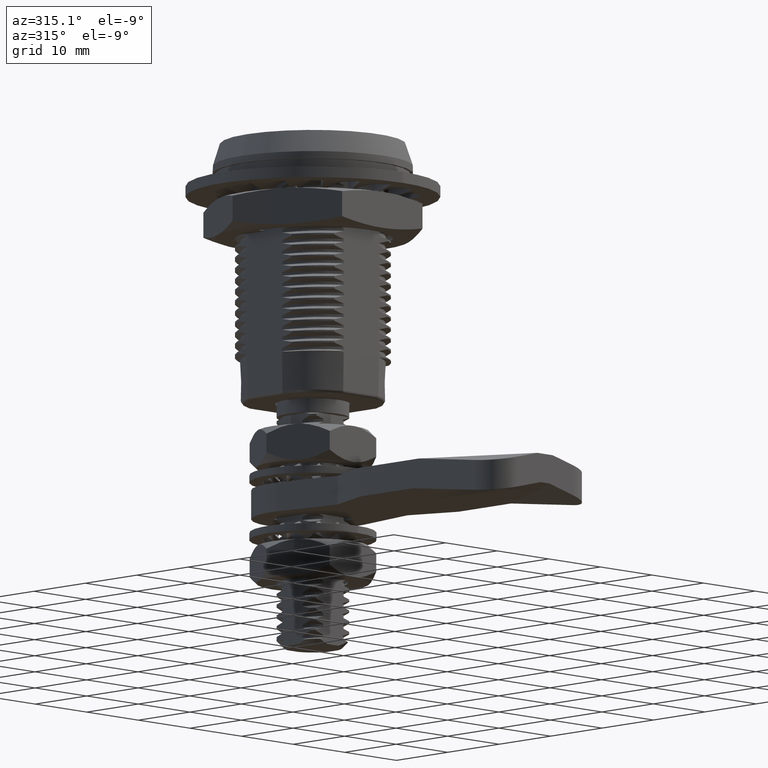
[diagram: clean part render]
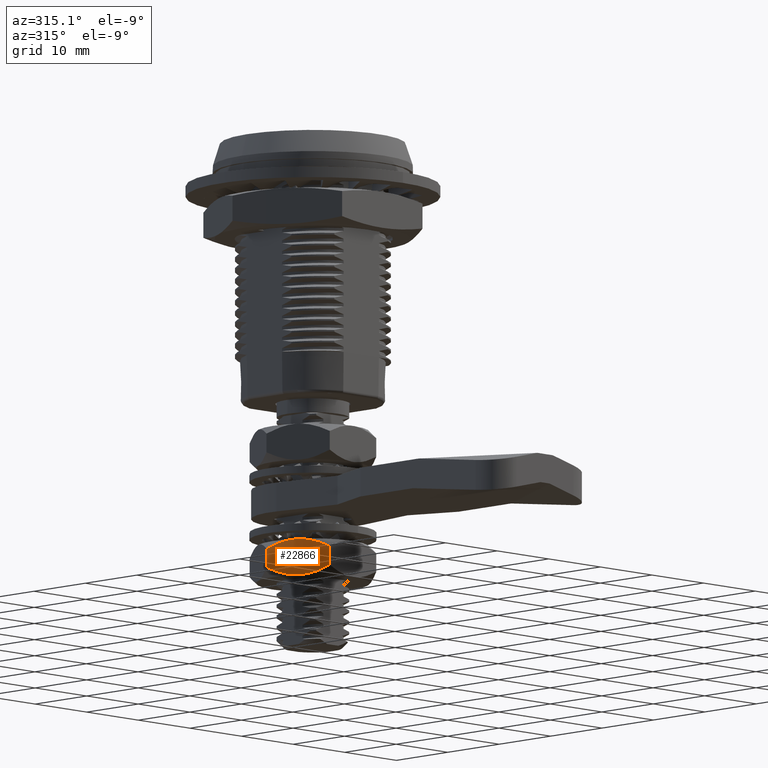
[diagram: same view with one face highlighted and labeled with its STEP entity id]
A machine part, auxiliary view. The second image highlights one B-rep face of the part: STEP entity #22866.
In plain terms, the highlighted planar face has unit normal (0.866, 0.5, 0).
Its self-contained STEP definition (entity closure, byte-faithful):
#84=(
BOUNDED_CURVE()
B_SPLINE_CURVE(2,(#191141,#191142,#191143),.UNSPECIFIED.,.F.,.F.)
B_SPLINE_CURVE_WITH_KNOTS((3,3),(0.633327662938364,1.24050970245296),
 .UNSPECIFIED.)
CURVE()
GEOMETRIC_REPRESENTATION_ITEM()
RATIONAL_B_SPLINE_CURVE((1.28581247192655,1.37812965388214,1.3847577293368))
REPRESENTATION_ITEM('')
);
#85=(
BOUNDED_CURVE()
B_SPLINE_CURVE(2,(#191145,#191146,#191147),.UNSPECIFIED.,.F.,.F.)
B_SPLINE_CURVE_WITH_KNOTS((3,3),(1.33444109086292,1.94162313036472),
 .UNSPECIFIED.)
CURVE()
GEOMETRIC_REPRESENTATION_ITEM()
RATIONAL_B_SPLINE_CURVE((1.38475772933679,1.37812965388226,1.28581247193043))
REPRESENTATION_ITEM('')
);
#86=(
BOUNDED_CURVE()
B_SPLINE_CURVE(2,(#191151,#191152,#191153),.UNSPECIFIED.,.F.,.F.)
B_SPLINE_CURVE_WITH_KNOTS((3,3),(0.633327662938371,1.24050970245281),
 .UNSPECIFIED.)
CURVE()
GEOMETRIC_REPRESENTATION_ITEM()
RATIONAL_B_SPLINE_CURVE((1.28581247192654,1.3781296538821,1.38475772933678))
REPRESENTATION_ITEM('')
);
#87=(
BOUNDED_CURVE()
B_SPLINE_CURVE(2,(#191157,#191158,#191159),.UNSPECIFIED.,.F.,.F.)
B_SPLINE_CURVE_WITH_KNOTS((3,3),(1.33444109086306,1.94162313036471),
 .UNSPECIFIED.)
CURVE()
GEOMETRIC_REPRESENTATION_ITEM()
RATIONAL_B_SPLINE_CURVE((1.38475772933678,1.37812965388223,1.28581247193042))
REPRESENTATION_ITEM('')
);
#492=PLANE('',#24152);
#2645=FACE_OUTER_BOUND('',#3936,.T.);
#3936=EDGE_LOOP('',(#20740,#20741,#20742,#20743,#20744,#20745,#20746,#20747));
#6802=LINE('',#191133,#8137);
#6804=LINE('',#191149,#8139);
#6805=LINE('',#191155,#8140);
#6806=LINE('',#191160,#8141);
#8137=VECTOR('',#27943,2.6000000000006);
#8139=VECTOR('',#27947,0.600000000020901);
#8140=VECTOR('',#27948,2.6000000000011);
#8141=VECTOR('',#27949,0.600000000020901);
#10407=VERTEX_POINT('',#191128);
#10408=VERTEX_POINT('',#191132);
#10410=VERTEX_POINT('',#191140);
#10411=VERTEX_POINT('',#191144);
#10412=VERTEX_POINT('',#191148);
#10413=VERTEX_POINT('',#191150);
#10414=VERTEX_POINT('',#191154);
#10415=VERTEX_POINT('',#191156);
#13876=EDGE_CURVE('',#10408,#10407,#6802,.T.);
#13879=EDGE_CURVE('',#10408,#10410,#84,.T.);
#13880=EDGE_CURVE('',#10411,#10407,#85,.T.);
#13881=EDGE_CURVE('',#10411,#10412,#6804,.T.);
#13882=EDGE_CURVE('',#10413,#10412,#86,.T.);
#13883=EDGE_CURVE('',#10414,#10413,#6805,.T.);
#13884=EDGE_CURVE('',#10415,#10414,#87,.T.);
#13885=EDGE_CURVE('',#10410,#10415,#6806,.T.);
#20740=ORIENTED_EDGE('',*,*,#13879,.F.);
#20741=ORIENTED_EDGE('',*,*,#13876,.T.);
#20742=ORIENTED_EDGE('',*,*,#13880,.F.);
#20743=ORIENTED_EDGE('',*,*,#13881,.T.);
#20744=ORIENTED_EDGE('',*,*,#13882,.F.);
#20745=ORIENTED_EDGE('',*,*,#13883,.F.);
#20746=ORIENTED_EDGE('',*,*,#13884,.F.);
#20747=ORIENTED_EDGE('',*,*,#13885,.F.);
#22866=ADVANCED_FACE('',(#2645),#492,.F.);
#24152=AXIS2_PLACEMENT_3D('',#191139,#27945,#27946);
#27943=DIRECTION('',(0.,0.,1.));
#27945=DIRECTION('center_axis',(0.866025403784439,0.499999999999999,0.));
#27946=DIRECTION('ref_axis',(0.499999999999996,-0.866025403784441,0.));
#27947=DIRECTION('',(-0.499999999999999,0.866025403784439,0.));
#27948=DIRECTION('',(0.,0.,1.));
#27949=DIRECTION('',(-0.499999999999999,0.866025403784439,0.));
#191128=CARTESIAN_POINT('',(164.5,197.20577136594,-57.5999999999997));
#191132=CARTESIAN_POINT('',(164.5,197.20577136594,-60.2000000000003));
#191133=CARTESIAN_POINT('',(164.5,197.20577136594,-61.4));
#191139=CARTESIAN_POINT('Origin',(164.5,197.20577136594,-61.4));
#191140=CARTESIAN_POINT('',(162.400000000005,200.843078061826,-61.4));
#191141=CARTESIAN_POINT('Ctrl Pts',(164.5,197.20577136594,-60.2000000000002));
#191142=CARTESIAN_POINT('Ctrl Pts',(163.375000000002,199.154328524451,-61.3249999999979));
#191143=CARTESIAN_POINT('Ctrl Pts',(162.400000000004,200.843078061827,-61.3999999999999));
#191144=CARTESIAN_POINT('',(162.400000000005,200.843078061826,-56.4));
#191145=CARTESIAN_POINT('Ctrl Pts',(162.400000000004,200.843078061827,-56.4000000000001));
#191146=CARTESIAN_POINT('Ctrl Pts',(163.374999999982,199.154328524487,-56.4750000000005));
#191147=CARTESIAN_POINT('Ctrl Pts',(164.499999999949,197.205771366028,-57.599999999949));
#191148=CARTESIAN_POINT('',(162.099999999995,201.362693304115,-56.4));
#191149=CARTESIAN_POINT('',(164.5,197.20577136594,-56.4));
#191150=CARTESIAN_POINT('',(160.,205.,-57.5999999999994));
#191151=CARTESIAN_POINT('Ctrl Pts',(160.,205.,-57.5999999999997));
#191152=CARTESIAN_POINT('Ctrl Pts',(161.124999999997,203.051442841489,-56.4750000000023));
#191153=CARTESIAN_POINT('Ctrl Pts',(162.099999999995,201.362693304113,-56.4000000000002));
#191154=CARTESIAN_POINT('',(160.,205.,-60.2000000000005));
#191155=CARTESIAN_POINT('',(160.,205.,-61.4));
#191156=CARTESIAN_POINT('',(162.099999999995,201.362693304115,-61.4));
#191157=CARTESIAN_POINT('Ctrl Pts',(162.099999999995,201.362693304113,-61.3999999999999));
#191158=CARTESIAN_POINT('Ctrl Pts',(161.125000000018,203.051442841454,-61.3249999999993));
#191159=CARTESIAN_POINT('Ctrl Pts',(160.000000000051,204.999999999912,-60.200000000051));
#191160=CARTESIAN_POINT('',(164.5,197.20577136594,-61.4));